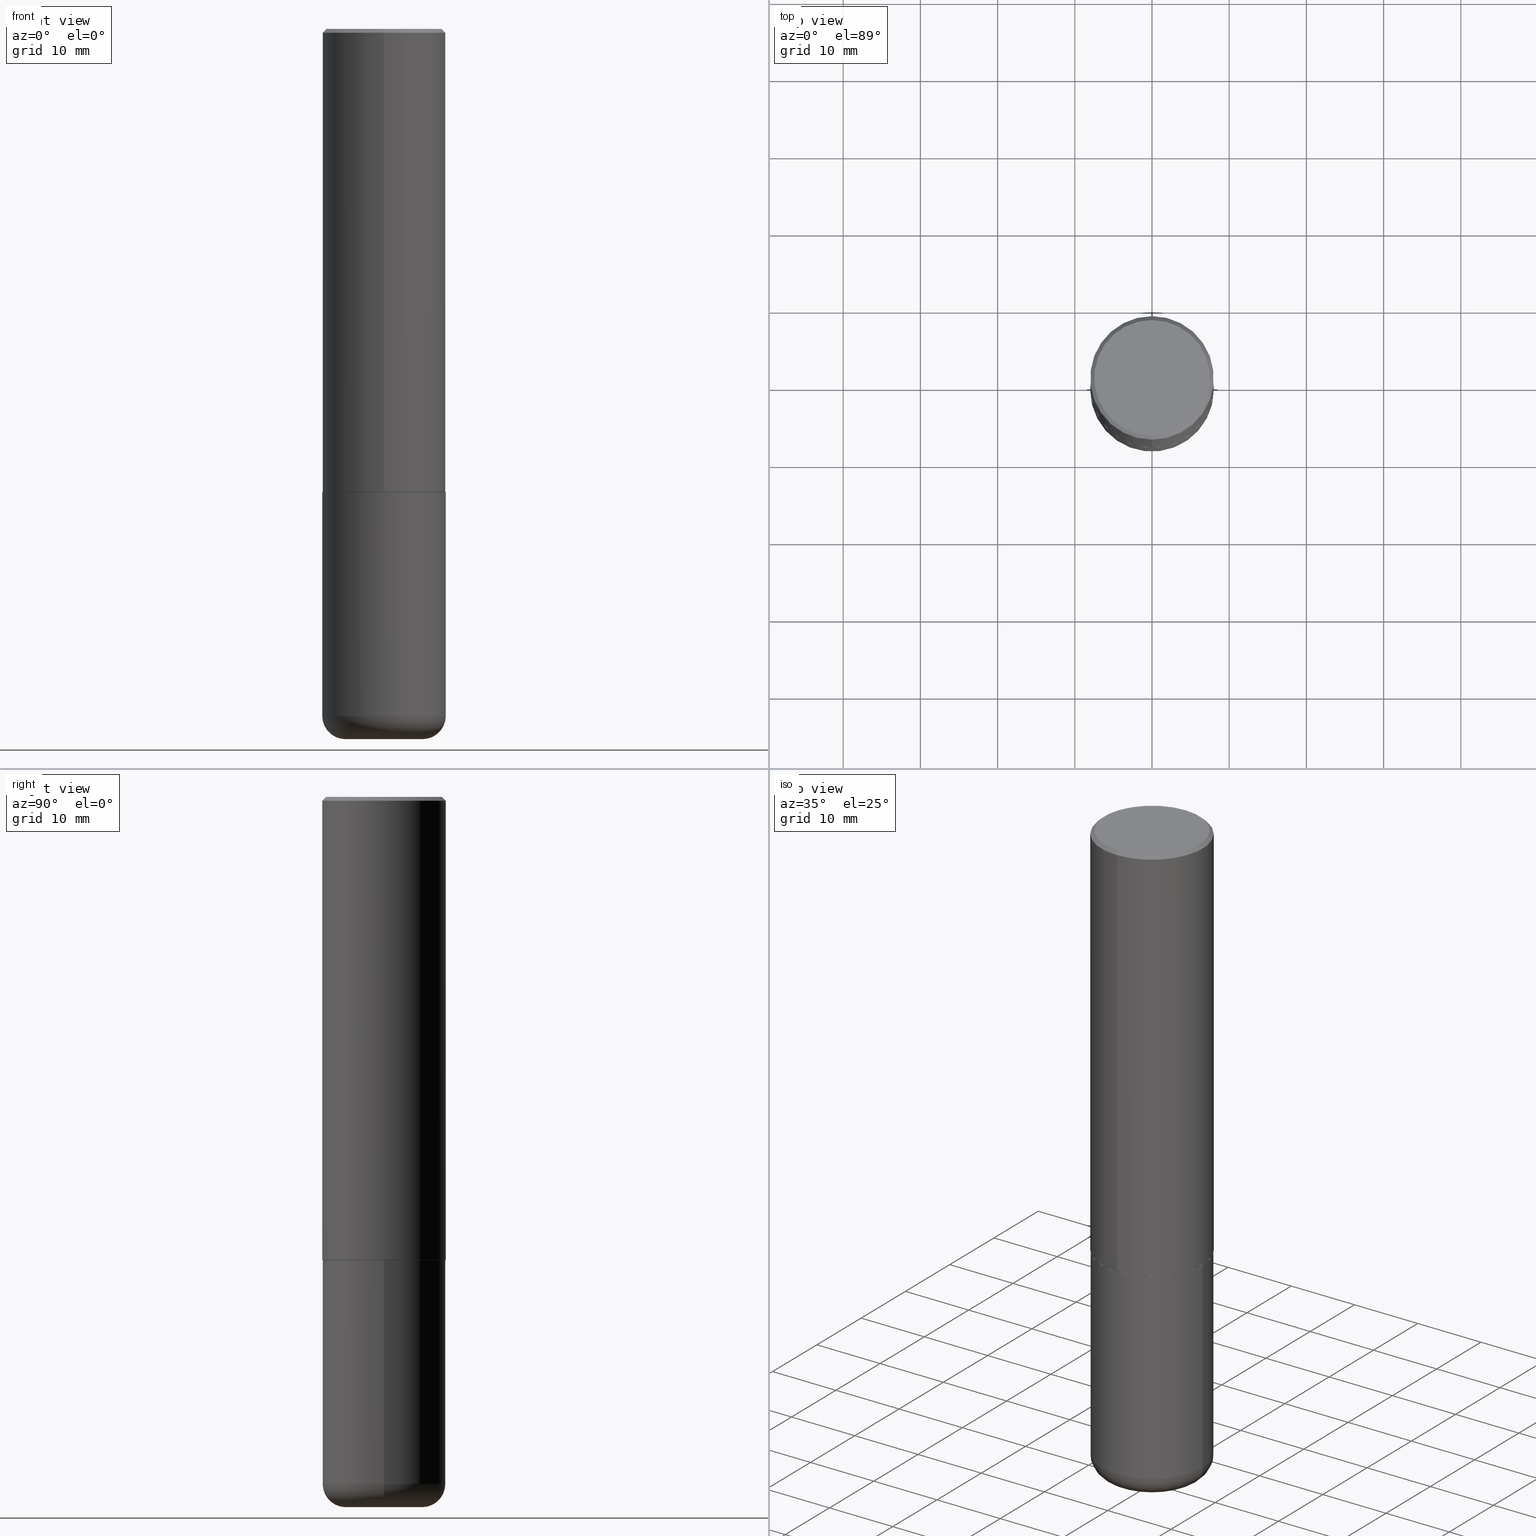
[diagram: canonical four-view strip — front | top / right | iso, engineering-drawing reading convention]
A machine part, canonical four-view strip (front | top / right | iso — engineering-drawing reading convention). The complete STEP part file that produces these views, byte-faithful:
ISO-10303-21;
HEADER;
FILE_DESCRIPTION (( 'STEP AP203' ),
    '1' );
FILE_NAME ('42721.STEP',
    '2024-03-04T03:57:21',
    ( '' ),
    ( '' ),
    'SwSTEP 2.0',
    'SolidWorks 2023',
    '' );
FILE_SCHEMA (( 'CONFIG_CONTROL_DESIGN' ));
ENDSEC;

DATA;
#1 = CARTESIAN_POINT ( 'NONE',  ( 0.3149500000000000077, -2.199284095337289871E-15, 1.535751875536930130E-29 ) ) ;
#2 = ADVANCED_FACE ( 'NONE', ( #363 ), #63, .T. ) ;
#3 = APPLICATION_CONTEXT ( 'configuration controlled 3d designs of mechanical parts and assemblies' ) ;
#4 = AXIS2_PLACEMENT_3D ( 'NONE', #401, #119, #241 ) ;
#5 = DIRECTION ( 'NONE',  ( -2.443194745834749003E-29, 3.494737922696377105E-15, 1.000000000000000000 ) ) ;
#6 = CARTESIAN_POINT ( 'NONE',  ( -2.199284095337233467E-15, -0.3149500000000085564, -2.361199999999998411 ) ) ;
#7 = CIRCLE ( 'NONE', #408, 0.3139500000000000068 ) ;
#8 = CC_DESIGN_APPROVAL ( #140, ( #208 ) ) ;
#9 = APPROVAL ( #68, 'UNSPECIFIED' ) ;
#10 = VERTEX_POINT ( 'NONE', #84 ) ;
#11 = ORIENTED_EDGE ( 'NONE', *, *, #174, .F. ) ;
#12 = CARTESIAN_POINT ( 'NONE',  ( 0.1968500000000000250, -1.360839766627503947E-14, -3.503899999999999793 ) ) ;
#13 = ADVANCED_FACE ( 'NONE', ( #273 ), #25, .T. ) ;
#14 = DIRECTION ( 'NONE',  ( 6.982962677686265922E-15, 1.000000000000000000, -3.496670018878889100E-15 ) ) ;
#15 = DIRECTION ( 'NONE',  ( -6.982962677686265922E-15, -1.000000000000000000, 3.494737922696377105E-15 ) ) ;
#16 = ORIENTED_EDGE ( 'NONE', *, *, #286, .F. ) ;
#17 = DIRECTION ( 'NONE',  ( -1.000000000000000000, 6.982962677686265922E-15, -4.876176775795935793E-29 ) ) ;
#18 = MANIFOLD_SOLID_BREP ( 'Body-Move/Copy2[1]', #280 ) ;
#19 = ORIENTED_EDGE ( 'NONE', *, *, #92, .F. ) ;
#20 = AXIS2_PLACEMENT_3D ( 'NONE', #357, #5, #41 ) ;
#21 = FACE_OUTER_BOUND ( 'NONE', #159, .T. ) ;
#22 = AXIS2_PLACEMENT_3D ( 'NONE', #341, #415, #376 ) ;
#23 = ORIENTED_EDGE ( 'NONE', *, *, #145, .T. ) ;
#24 = MECHANICAL_CONTEXT ( 'NONE', #128, 'mechanical' ) ;
#25 = CYLINDRICAL_SURFACE ( 'NONE', #126, 0.3149500000000000077 ) ;
#26 = APPROVAL_DATE_TIME ( #312, #9 ) ;
#27 = EDGE_CURVE ( 'NONE', #10, #103, #339, .T. ) ;
#28 = VERTEX_POINT ( 'NONE', #371 ) ;
#29 = CIRCLE ( 'NONE', #95, 0.1180999999999999966 ) ;
#30 = DIRECTION ( 'NONE',  ( -1.000000000000000000, 6.982962677686265922E-15, -4.876176775795935793E-29 ) ) ;
#31 = EDGE_LOOP ( 'NONE', ( #135, #394, #318, #236 ) ) ;
#32 = ORIENTED_EDGE ( 'NONE', *, *, #27, .T. ) ;
#33 = EDGE_CURVE ( 'NONE', #10, #115, #397, .T. ) ;
#34 = PERSON_AND_ORGANIZATION_ROLE ( 'design_owner' ) ;
#35 = DIRECTION ( 'NONE',  ( -2.443194745834749283E-29, 3.494737922696377105E-15, 1.000000000000000000 ) ) ;
#36 = DATE_AND_TIME ( #293, #305 ) ;
#37 = DIRECTION ( 'NONE',  ( 1.000000000000000000, -6.982962677686266711E-15, 0.000000000000000000 ) ) ;
#38 = CONICAL_SURFACE ( 'NONE', #389, 0.3149500000000000077, 0.7853981633974465026 ) ;
#39 = DIRECTION ( 'NONE',  ( 6.982962677686265922E-15, 1.000000000000000000, -3.494737922696377105E-15 ) ) ;
#40 = EDGE_CURVE ( 'NONE', #266, #54, #230, .T. ) ;
#41 = DIRECTION ( 'NONE',  ( -6.982962677686265922E-15, -1.000000000000000000, 3.494737922696377105E-15 ) ) ;
#42 = ORIENTED_EDGE ( 'NONE', *, *, #79, .F. ) ;
#43 = CIRCLE ( 'NONE', #310, 0.3149500000000000077 ) ;
#44 = ORIENTED_EDGE ( 'NONE', *, *, #268, .T. ) ;
#45 = CARTESIAN_POINT ( 'NONE',  ( 8.568678149992099474E-29, -1.223380146317249786E-14, -3.503899999999999793 ) ) ;
#46 = DIRECTION ( 'NONE',  ( 2.443194745834749283E-29, -3.494737922696377105E-15, -1.000000000000000000 ) ) ;
#47 = AXIS2_PLACEMENT_3D ( 'NONE', #137, #361, #176 ) ;
#48 = DIRECTION ( 'NONE',  ( -2.443194745834749283E-29, 3.494737922696377105E-15, 1.000000000000000000 ) ) ;
#49 = ORIENTED_EDGE ( 'NONE', *, *, #184, .T. ) ;
#50 = DIRECTION ( 'NONE',  ( 4.937700262164538576E-15, 0.7071067811865437980, -0.7071067811865512365 ) ) ;
#51 = ORIENTED_EDGE ( 'NONE', *, *, #358, .F. ) ;
#52 = CARTESIAN_POINT ( 'NONE',  ( 0.000000000000000000, 0.000000000000000000, 0.000000000000000000 ) ) ;
#53 = CIRCLE ( 'NONE', #151, 0.3149500000000002853 ) ;
#54 = VERTEX_POINT ( 'NONE', #256 ) ;
#55 = AXIS2_PLACEMENT_3D ( 'NONE', #276, #309, #157 ) ;
#56 = ORIENTED_EDGE ( 'NONE', *, *, #92, .T. ) ;
#57 = APPROVAL_ROLE ( '' ) ;
#58 = EDGE_CURVE ( 'NONE', #207, #54, #378, .T. ) ;
#59 = DIRECTION ( 'NONE',  ( -2.445468806185136877E-29, 3.491481338843145188E-15, 1.000000000000000000 ) ) ;
#60 = APPROVAL_DATE_TIME ( #97, #140 ) ;
#61 = DIRECTION ( 'NONE',  ( -6.982962677686266711E-15, -1.000000000000000000, 3.480615376543096919E-15 ) ) ;
#62 = APPLICATION_PROTOCOL_DEFINITION ( 'international standard', 'config_control_design', 1994, #3 ) ;
#63 = CONICAL_SURFACE ( 'NONE', #55, 0.3139500000000000068, 0.7853981633976873100 ) ;
#64 = DIRECTION ( 'NONE',  ( -6.982962677686265922E-15, -1.000000000000000000, 3.496670018878889100E-15 ) ) ;
#65 = APPROVAL_PERSON_ORGANIZATION ( #298, #346, #352 ) ;
#66 = EDGE_CURVE ( 'NONE', #344, #375, #7, .T. ) ;
#67 = ORIENTED_EDGE ( 'NONE', *, *, #58, .F. ) ;
#68 = APPROVAL_STATUS ( 'not_yet_approved' ) ;
#69 = FACE_OUTER_BOUND ( 'NONE', #320, .T. ) ;
#70 = CC_DESIGN_PERSON_AND_ORGANIZATION_ASSIGNMENT ( #379, #101, ( #143 ) ) ;
#71 = CIRCLE ( 'NONE', #85, 0.3139500000000000068 ) ;
#72 = TOROIDAL_SURFACE ( 'NONE', #325, 0.1968500000000000250, 0.1181000000000000105 ) ;
#73 = APPROVAL_STATUS ( 'not_yet_approved' ) ;
#74 = PLANE ( 'NONE',  #171 ) ;
#75 = EDGE_CURVE ( 'NONE', #103, #266, #98, .T. ) ;
#76 = EDGE_LOOP ( 'NONE', ( #402, #381 ) ) ;
#77 = PLANE ( 'NONE',  #20 ) ;
#78 = VECTOR ( 'NONE', #240, 39.37007874015748143 ) ;
#79 = EDGE_CURVE ( 'NONE', #225, #302, #194, .T. ) ;
#80 = ADVANCED_FACE ( 'NONE', ( #254 ), #109, .T. ) ;
#81 = ORIENTED_EDGE ( 'NONE', *, *, #184, .F. ) ;
#82 = DIRECTION ( 'NONE',  ( -6.982962677686266711E-15, -1.000000000000000000, 3.491481338843145583E-15 ) ) ;
#83 = FACE_OUTER_BOUND ( 'NONE', #216, .T. ) ;
#84 = CARTESIAN_POINT ( 'NONE',  ( -0.1968500000000000527, -1.062169457542108922E-14, -3.621999999999999886 ) ) ;
#85 = AXIS2_PLACEMENT_3D ( 'NONE', #232, #328, #259 ) ;
#86 = DIRECTION ( 'NONE',  ( 1.000000000000000000, -6.982962677686266711E-15, 4.876176775795936353E-29 ) ) ;
#87 = ORIENTED_EDGE ( 'NONE', *, *, #33, .F. ) ;
#88 = LINE ( 'NONE', #308, #78 ) ;
#89 = CARTESIAN_POINT ( 'NONE',  ( 0.000000000000000000, 0.000000000000000000, 0.000000000000000000 ) ) ;
#90 = EDGE_LOOP ( 'NONE', ( #251, #244, #414, #23 ) ) ;
#91 = DIRECTION ( 'NONE',  ( 2.443194745834749283E-29, -3.494737922696377105E-15, -1.000000000000000000 ) ) ;
#92 = EDGE_CURVE ( 'NONE', #28, #267, #377, .T. ) ;
#93 = CIRCLE ( 'NONE', #165, 0.2949499999999997679 ) ;
#94 = EDGE_LOOP ( 'NONE', ( #11, #198 ) ) ;
#95 = AXIS2_PLACEMENT_3D ( 'NONE', #12, #82, #152 ) ;
#96 = EDGE_CURVE ( 'NONE', #204, #225, #191, .T. ) ;
#97 = DATE_AND_TIME ( #255, #195 ) ;
#98 = LINE ( 'NONE', #133, #178 ) ;
#99 = ADVANCED_BREP_SHAPE_REPRESENTATION ( '42721', ( #18, #179, #22 ), #370 ) ;
#100 = CC_DESIGN_DATE_AND_TIME_ASSIGNMENT ( #190, #349, ( #208 ) ) ;
#101 = PERSON_AND_ORGANIZATION_ROLE ( 'design_supplier' ) ;
#102 = CARTESIAN_POINT ( 'NONE',  ( 5.771314628610843962E-29, -8.255269920993381525E-15, -2.362199999999999633 ) ) ;
#103 = VERTEX_POINT ( 'NONE', #316 ) ;
#104 = CARTESIAN_POINT ( 'NONE',  ( 8.857488016002564476E-29, -1.264614540928987199E-14, -3.621999999999999886 ) ) ;
#105 = AXIS2_PLACEMENT_3D ( 'NONE', #287, #200, #343 ) ;
#106 = CARTESIAN_POINT ( 'NONE',  ( 8.568678149992099474E-29, -1.223380146317249786E-14, -3.503899999999999793 ) ) ;
#107 = ADVANCED_FACE ( 'NONE', ( #382 ), #292, .T. ) ;
#108 = APPROVAL_ROLE ( '' ) ;
#109 = PLANE ( 'NONE',  #221 ) ;
#110 = APPROVAL_DATE_TIME ( #36, #346 ) ;
#111 = AXIS2_PLACEMENT_3D ( 'NONE', #210, #153, #15 ) ;
#112 = CC_DESIGN_APPROVAL ( #346, ( #360 ) ) ;
#113 = ORIENTED_EDGE ( 'NONE', *, *, #314, .F. ) ;
#114 = LINE ( 'NONE', #294, #281 ) ;
#115 = VERTEX_POINT ( 'NONE', #279 ) ;
#116 = ORIENTED_EDGE ( 'NONE', *, *, #173, .T. ) ;
#117 = LOCAL_TIME ( 22, 57, 21.00000000000000000, #407 ) ;
#118 = CARTESIAN_POINT ( 'NONE',  ( -6.593616195672795662E-45, 9.431487443236869670E-31, 2.698768162838366015E-16 ) ) ;
#119 = DIRECTION ( 'NONE',  ( 7.105427357601001859E-15, 1.000000000000000000, -3.491481338843145583E-15 ) ) ;
#120 = AXIS2_PLACEMENT_3D ( 'NONE', #102, #220, #61 ) ;
#121 = ORIENTED_EDGE ( 'NONE', *, *, #214, .F. ) ;
#122 = CARTESIAN_POINT ( 'NONE',  ( 2.237854346276435985E-15, 0.3149500000000001743, -1.100667708753224483E-15 ) ) ;
#123 = FACE_OUTER_BOUND ( 'NONE', #161, .T. ) ;
#124 = ADVANCED_FACE ( 'NONE', ( #283 ), #250, .T. ) ;
#125 = DIRECTION ( 'NONE',  ( -2.445468806185136597E-29, 3.491481338843145583E-15, 1.000000000000000000 ) ) ;
#126 = AXIS2_PLACEMENT_3D ( 'NONE', #89, #365, #248 ) ;
#127 = UNCERTAINTY_MEASURE_WITH_UNIT (LENGTH_MEASURE( 1.000000000000000082E-05 ), #136, 'distance_accuracy_value', 'NONE');
#128 = APPLICATION_CONTEXT ( 'configuration controlled 3d designs of mechanical parts and assemblies' ) ;
#129 = ORGANIZATION ( 'UNSPECIFIED', 'UNSPECIFIED', '' ) ;
#130 = PERSON_AND_ORGANIZATION ( #260, #129 ) ;
#131 = EDGE_LOOP ( 'NONE', ( #16, #396, #307, #113 ) ) ;
#132 = APPLICATION_PROTOCOL_DEFINITION ( 'international standard', 'config_control_design', 1994, #128 ) ;
#133 = CARTESIAN_POINT ( 'NONE',  ( -0.3149500000000000077, 2.237854346276435590E-15, -1.549218606675782676E-29 ) ) ;
#134 = CARTESIAN_POINT ( 'NONE',  ( 0.000000000000000000, 0.000000000000000000, 0.000000000000000000 ) ) ;
#135 = ORIENTED_EDGE ( 'NONE', *, *, #75, .F. ) ;
#136 =( CONVERSION_BASED_UNIT ( 'INCH', #372 ) LENGTH_UNIT ( ) NAMED_UNIT ( #285 ) );
#137 = CARTESIAN_POINT ( 'NONE',  ( 5.776686413970529753E-29, -8.247577218615278049E-15, -2.362199999999999633 ) ) ;
#138 = LOCAL_TIME ( 22, 57, 21.00000000000000000, #223 ) ;
#139 = ORIENTED_EDGE ( 'NONE', *, *, #145, .F. ) ;
#140 = APPROVAL ( #387, 'UNSPECIFIED' ) ;
#141 = CARTESIAN_POINT ( 'NONE',  ( 0.3149500000000000077, -1.443308555850978615E-14, -3.503899999999999793 ) ) ;
#142 = VECTOR ( 'NONE', #404, 39.37007874015748143 ) ;
#143 = PRODUCT_DEFINITION_FORMATION_WITH_SPECIFIED_SOURCE ( 'ANY', '', #417, .NOT_KNOWN. ) ;
#144 = PERSON_AND_ORGANIZATION_ROLE ( 'classification_officer' ) ;
#145 = EDGE_CURVE ( 'NONE', #302, #225, #43, .T. ) ;
#146 = CARTESIAN_POINT ( 'NONE',  ( -2.192301132659545875E-15, -0.3139500000000082780, -2.362199999999998301 ) ) ;
#147 = ORIENTED_EDGE ( 'NONE', *, *, #295, .F. ) ;
#148 = EDGE_LOOP ( 'NONE', ( #340, #32, #228, #51 ) ) ;
#149 = ADVANCED_FACE ( 'NONE', ( #69 ), #416, .T. ) ;
#150 = DIRECTION ( 'NONE',  ( -2.443194745834749563E-29, 3.494737922696377105E-15, 1.000000000000000000 ) ) ;
#151 = AXIS2_PLACEMENT_3D ( 'NONE', #391, #355, #203 ) ;
#152 = DIRECTION ( 'NONE',  ( 1.000000000000000000, -6.982962677686273021E-15, 0.000000000000000000 ) ) ;
#153 = DIRECTION ( 'NONE',  ( -2.443194745834749283E-29, 3.494737922696377105E-15, 1.000000000000000000 ) ) ;
#154 = ORIENTED_EDGE ( 'NONE', *, *, #373, .F. ) ;
#155 = CONICAL_SURFACE ( 'NONE', #212, 0.3149500000000000077, 0.7853981633974465026 ) ;
#156 = CARTESIAN_POINT ( 'NONE',  ( 2.199284095337289871E-15, 0.3149499999999999522, -0.02000000000000116962 ) ) ;
#157 = DIRECTION ( 'NONE',  ( -6.982962677686266711E-15, -1.000000000000000000, 3.480615376543096919E-15 ) ) ;
#158 = EDGE_CURVE ( 'NONE', #207, #103, #347, .T. ) ;
#159 = EDGE_LOOP ( 'NONE', ( #116, #362 ) ) ;
#160 = COORDINATED_UNIVERSAL_TIME_OFFSET ( 5, 0, .BEHIND. ) ;
#161 = EDGE_LOOP ( 'NONE', ( #44, #167, #42, #81 ) ) ;
#162 = PERSON_AND_ORGANIZATION_ROLE ( 'creator' ) ;
#163 = CARTESIAN_POINT ( 'NONE',  ( -2.160713844398143363E-15, -0.3149500000000000632, -0.01999999999999896652 ) ) ;
#164 = CLOSED_SHELL ( 'NONE', ( #124, #353, #313, #405, #149, #2, #199, #237 ) ) ;
#165 = AXIS2_PLACEMENT_3D ( 'NONE', #118, #48, #364 ) ;
#166 = DIRECTION ( 'NONE',  ( -2.443194745834749283E-29, 3.494737922696377105E-15, 1.000000000000000000 ) ) ;
#167 = ORIENTED_EDGE ( 'NONE', *, *, #373, .T. ) ;
#168 = ORIENTED_EDGE ( 'NONE', *, *, #158, .T. ) ;
#169 = CALENDAR_DATE ( 2024, 3, 3 ) ;
#170 = DIRECTION ( 'NONE',  ( -2.445468806185136597E-29, 3.491481338843145583E-15, 1.000000000000000000 ) ) ;
#171 = AXIS2_PLACEMENT_3D ( 'NONE', #201, #326, #39 ) ;
#172 = CC_DESIGN_SECURITY_CLASSIFICATION ( #360, ( #143 ) ) ;
#173 = EDGE_CURVE ( 'NONE', #54, #266, #257, .T. ) ;
#174 = EDGE_CURVE ( 'NONE', #375, #344, #71, .T. ) ;
#175 = CC_DESIGN_PERSON_AND_ORGANIZATION_ASSIGNMENT ( #315, #162, ( #208 ) ) ;
#176 = DIRECTION ( 'NONE',  ( 1.000000000000000000, -6.982962677686266711E-15, 0.000000000000000000 ) ) ;
#177 = ORIENTED_EDGE ( 'NONE', *, *, #290, .T. ) ;
#178 = VECTOR ( 'NONE', #59, 39.37007874015748143 ) ;
#179 = MANIFOLD_SOLID_BREP ( 'Body-Move/Copy2[2]', #164 ) ;
#180 = DATE_TIME_ROLE ( 'classification_date' ) ;
#181 = ORIENTED_EDGE ( 'NONE', *, *, #358, .T. ) ;
#182 = VECTOR ( 'NONE', #224, 39.37007874015748143 ) ;
#183 = AXIS2_PLACEMENT_3D ( 'NONE', #52, #275, #86 ) ;
#184 = EDGE_CURVE ( 'NONE', #267, #225, #114, .T. ) ;
#185 = CARTESIAN_POINT ( 'NONE',  ( 4.886389491669515207E-31, -6.989475845392777581E-17, -0.02000000000000006981 ) ) ;
#186 = CARTESIAN_POINT ( 'NONE',  ( 5.776686413970529753E-29, -8.247577218615278049E-15, -2.362199999999999633 ) ) ;
#187 = DESIGN_CONTEXT ( 'detailed design', #3, 'design' ) ;
#188 = DIRECTION ( 'NONE',  ( -2.445468806185136597E-29, 3.491481338843145583E-15, 1.000000000000000000 ) ) ;
#189 = CIRCLE ( 'NONE', #291, 0.3149500000000000077 ) ;
#190 = DATE_AND_TIME ( #169, #138 ) ;
#191 = LINE ( 'NONE', #163, #242 ) ;
#192 = PERSON_AND_ORGANIZATION ( #260, #129 ) ;
#193 = DIRECTION ( 'NONE',  ( -6.982962677686265922E-15, -1.000000000000000000, 3.496670018878889100E-15 ) ) ;
#194 = CIRCLE ( 'NONE', #368, 0.3149500000000000077 ) ;
#195 = LOCAL_TIME ( 22, 57, 21.00000000000000000, #160 ) ;
#196 =( NAMED_UNIT ( * ) PLANE_ANGLE_UNIT ( ) SI_UNIT ( $, .RADIAN. ) );
#197 = CARTESIAN_POINT ( 'NONE',  ( 5.771314628610843962E-29, -8.255269920993381525E-15, -2.362199999999999633 ) ) ;
#198 = ORIENTED_EDGE ( 'NONE', *, *, #66, .F. ) ;
#199 = ADVANCED_FACE ( 'NONE', ( #264 ), #77, .F. ) ;
#200 = DIRECTION ( 'NONE',  ( -2.443194745834749283E-29, 3.494737922696377105E-15, 1.000000000000000000 ) ) ;
#201 = CARTESIAN_POINT ( 'NONE',  ( 2.059624841783562486E-15, 0.2949499999999997679, -8.958345421573771736E-16 ) ) ;
#202 = COORDINATED_UNIVERSAL_TIME_OFFSET ( 5, 0, .BEHIND. ) ;
#203 = DIRECTION ( 'NONE',  ( -6.982962677686265922E-15, -1.000000000000000000, 3.469564049740290009E-15 ) ) ;
#204 = VERTEX_POINT ( 'NONE', #301 ) ;
#205 = EDGE_LOOP ( 'NONE', ( #386, #418, #181, #121 ) ) ;
#206 = AXIS2_PLACEMENT_3D ( 'NONE', #106, #170, #289 ) ;
#207 = VERTEX_POINT ( 'NONE', #141 ) ;
#208 = PRODUCT_DEFINITION ( 'UNKNOWN', '', #143, #187 ) ;
#209 = LINE ( 'NONE', #122, #410 ) ;
#210 = CARTESIAN_POINT ( 'NONE',  ( -6.593616195672795662E-45, 9.431487443236869670E-31, 2.698768162838366015E-16 ) ) ;
#211 = CC_DESIGN_PERSON_AND_ORGANIZATION_ASSIGNMENT ( #296, #144, ( #360 ) ) ;
#212 = AXIS2_PLACEMENT_3D ( 'NONE', #185, #46, #306 ) ;
#213 = FACE_OUTER_BOUND ( 'NONE', #131, .T. ) ;
#214 = EDGE_CURVE ( 'NONE', #103, #207, #189, .T. ) ;
#215 = VECTOR ( 'NONE', #50, 39.37007874015748143 ) ;
#216 = EDGE_LOOP ( 'NONE', ( #168, #411, #265, #67 ) ) ;
#217 = DIRECTION ( 'NONE',  ( -2.443194745834749283E-29, 3.494737922696377105E-15, 1.000000000000000000 ) ) ;
#218 = ORIENTED_EDGE ( 'NONE', *, *, #174, .T. ) ;
#219 = SECURITY_CLASSIFICATION_LEVEL ( 'unclassified' ) ;
#220 = DIRECTION ( 'NONE',  ( -2.443194745834749283E-29, 3.494737922696377105E-15, 1.000000000000000000 ) ) ;
#221 = AXIS2_PLACEMENT_3D ( 'NONE', #227, #350, #30 ) ;
#222 = LOCAL_TIME ( 22, 57, 21.00000000000000000, #202 ) ;
#223 = COORDINATED_UNIVERSAL_TIME_OFFSET ( 5, 0, .BEHIND. ) ;
#224 = DIRECTION ( 'NONE',  ( -2.445468806185136877E-29, 3.491481338843145188E-15, 1.000000000000000000 ) ) ;
#225 = VERTEX_POINT ( 'NONE', #330 ) ;
#226 = CALENDAR_DATE ( 2024, 3, 3 ) ;
#227 = CARTESIAN_POINT ( 'NONE',  ( 8.857488016002564476E-29, -1.264614540928987199E-14, -3.621999999999999886 ) ) ;
#228 = ORIENTED_EDGE ( 'NONE', *, *, #158, .F. ) ;
#229 = PRODUCT_RELATED_PRODUCT_CATEGORY ( 'detail', '', ( #417 ) ) ;
#230 = CIRCLE ( 'NONE', #327, 0.3149500000000000077 ) ;
#231 = SHAPE_DEFINITION_REPRESENTATION ( #284, #99 ) ;
#232 = CARTESIAN_POINT ( 'NONE',  ( 5.771314628610843962E-29, -8.255269920993381525E-15, -2.362199999999999633 ) ) ;
#233 = DATE_AND_TIME ( #300, #222 ) ;
#234 = VERTEX_POINT ( 'NONE', #395 ) ;
#235 = CIRCLE ( 'NONE', #269, 0.1968500000000000527 ) ;
#236 = ORIENTED_EDGE ( 'NONE', *, *, #40, .F. ) ;
#237 = ADVANCED_FACE ( 'NONE', ( #354 ), #74, .F. ) ;
#238 = CARTESIAN_POINT ( 'NONE',  ( 8.857488016002564476E-29, -1.264614540928987199E-14, -3.621999999999999886 ) ) ;
#239 = DIRECTION ( 'NONE',  ( -2.443194745834749283E-29, 3.494737922696377105E-15, 1.000000000000000000 ) ) ;
#240 = DIRECTION ( 'NONE',  ( 5.024295867789263036E-15, 0.7071067811867189912, 0.7071067811863760433 ) ) ;
#241 = DIRECTION ( 'NONE',  ( -1.000000000000000000, 7.105427357601005014E-15, 0.000000000000000000 ) ) ;
#242 = VECTOR ( 'NONE', #323, 39.37007874015748143 ) ;
#243 = CC_DESIGN_APPROVAL ( #9, ( #143 ) ) ;
#244 = ORIENTED_EDGE ( 'NONE', *, *, #356, .F. ) ;
#245 = CC_DESIGN_DATE_AND_TIME_ASSIGNMENT ( #233, #180, ( #360 ) ) ;
#246 = ORIENTED_EDGE ( 'NONE', *, *, #66, .T. ) ;
#247 = CARTESIAN_POINT ( 'NONE',  ( 0.000000000000000000, 0.000000000000000000, 0.000000000000000000 ) ) ;
#248 = DIRECTION ( 'NONE',  ( 1.000000000000000000, -6.982962677686266711E-15, 4.876176775795936353E-29 ) ) ;
#249 = DIRECTION ( 'NONE',  ( -6.982962677686266711E-15, -1.000000000000000000, 3.480615376543096919E-15 ) ) ;
#250 = CONICAL_SURFACE ( 'NONE', #120, 0.3139500000000000068, 0.7853981633976873100 ) ;
#251 = ORIENTED_EDGE ( 'NONE', *, *, #96, .F. ) ;
#252 = PERSON_AND_ORGANIZATION_ROLE ( 'creator' ) ;
#253 = DIRECTION ( 'NONE',  ( 1.000000000000000000, -6.982962677686263555E-15, 4.883557194083111780E-29 ) ) ;
#254 = FACE_OUTER_BOUND ( 'NONE', #274, .T. ) ;
#255 = CALENDAR_DATE ( 2024, 3, 3 ) ;
#256 = CARTESIAN_POINT ( 'NONE',  ( 0.3149500000000000077, -1.044686131395256792E-14, -2.362199999999999633 ) ) ;
#257 = CIRCLE ( 'NONE', #47, 0.3149500000000000077 ) ;
#258 =( NAMED_UNIT ( * ) SI_UNIT ( $, .STERADIAN. ) SOLID_ANGLE_UNIT ( ) );
#259 = DIRECTION ( 'NONE',  ( -6.982962677686266711E-15, -1.000000000000000000, 3.480615376543096919E-15 ) ) ;
#260 = PERSON ( 'UNSPECIFIED', 'UNSPECIFIED', 'UNSPECIFIED', ('UNSPECIFIED'), ('UNSPECIFIED'), ('UNSPECIFIED') ) ;
#261 = DIRECTION ( 'NONE',  ( -2.445468806185136597E-29, 3.491481338843145583E-15, 1.000000000000000000 ) ) ;
#262 = AXIS2_PLACEMENT_3D ( 'NONE', #186, #366, #17 ) ;
#263 = APPROVAL_PERSON_ORGANIZATION ( #192, #9, #108 ) ;
#264 = FACE_OUTER_BOUND ( 'NONE', #94, .T. ) ;
#265 = ORIENTED_EDGE ( 'NONE', *, *, #173, .F. ) ;
#266 = VERTEX_POINT ( 'NONE', #297 ) ;
#267 = VERTEX_POINT ( 'NONE', #6 ) ;
#268 = EDGE_CURVE ( 'NONE', #267, #28, #53, .T. ) ;
#269 = AXIS2_PLACEMENT_3D ( 'NONE', #238, #188, #331 ) ;
#270 = CARTESIAN_POINT ( 'NONE',  ( -2.192301132659545875E-15, -0.3139500000000082780, -2.362199999999998301 ) ) ;
#271 = DIRECTION ( 'NONE',  ( 1.000000000000000000, -6.982962677686263555E-15, 4.883557194083111780E-29 ) ) ;
#272 = FACE_OUTER_BOUND ( 'NONE', #205, .T. ) ;
#273 = FACE_OUTER_BOUND ( 'NONE', #31, .T. ) ;
#274 = EDGE_LOOP ( 'NONE', ( #147, #87 ) ) ;
#275 = DIRECTION ( 'NONE',  ( -2.445468806185136597E-29, 3.491481338843145583E-15, 1.000000000000000000 ) ) ;
#276 = CARTESIAN_POINT ( 'NONE',  ( 5.771314628610843962E-29, -8.255269920993381525E-15, -2.362199999999999633 ) ) ;
#277 = LINE ( 'NONE', #156, #215 ) ;
#278 = EDGE_CURVE ( 'NONE', #375, #267, #393, .T. ) ;
#279 = CARTESIAN_POINT ( 'NONE',  ( 0.1968500000000000527, -1.402074161239241360E-14, -3.621999999999999886 ) ) ;
#280 = CLOSED_SHELL ( 'NONE', ( #367, #107, #336, #13, #412, #80 ) ) ;
#281 = VECTOR ( 'NONE', #388, 39.37007874015748143 ) ;
#282 = CC_DESIGN_PERSON_AND_ORGANIZATION_ASSIGNMENT ( #130, #252, ( #143 ) ) ;
#283 = FACE_OUTER_BOUND ( 'NONE', #288, .T. ) ;
#284 = PRODUCT_DEFINITION_SHAPE ( 'NONE', 'NONE',  #208 ) ;
#285 = DIMENSIONAL_EXPONENTS ( 1.000000000000000000, 0.000000000000000000, 0.000000000000000000, 0.000000000000000000, 0.000000000000000000, 0.000000000000000000, 0.000000000000000000 ) ;
#286 = EDGE_CURVE ( 'NONE', #204, #234, #359, .T. ) ;
#287 = CARTESIAN_POINT ( 'NONE',  ( 5.768871433865010313E-29, -8.251775183070685478E-15, -2.361199999999999743 ) ) ;
#288 = EDGE_LOOP ( 'NONE', ( #218, #177, #337, #329 ) ) ;
#289 = DIRECTION ( 'NONE',  ( 1.000000000000000000, -6.982962677686263555E-15, 0.000000000000000000 ) ) ;
#290 = EDGE_CURVE ( 'NONE', #344, #28, #88, .T. ) ;
#291 = AXIS2_PLACEMENT_3D ( 'NONE', #45, #261, #299 ) ;
#292 = TOROIDAL_SURFACE ( 'NONE', #324, 0.1968500000000000250, 0.1181000000000000105 ) ;
#293 = CALENDAR_DATE ( 2024, 3, 3 ) ;
#294 = CARTESIAN_POINT ( 'NONE',  ( -2.199284095337290265E-15, -0.3149500000000001743, 1.100667708753224483E-15 ) ) ;
#295 = EDGE_CURVE ( 'NONE', #115, #10, #235, .T. ) ;
#296 = PERSON_AND_ORGANIZATION ( #260, #129 ) ;
#297 = CARTESIAN_POINT ( 'NONE',  ( -0.3149500000000000077, -8.002834994617451969E-15, -2.362199999999999633 ) ) ;
#298 = PERSON_AND_ORGANIZATION ( #260, #129 ) ;
#299 = DIRECTION ( 'NONE',  ( 1.000000000000000000, -6.982962677686263555E-15, 0.000000000000000000 ) ) ;
#300 = CALENDAR_DATE ( 2024, 3, 3 ) ;
#301 = CARTESIAN_POINT ( 'NONE',  ( -2.092108864420427242E-15, -0.2949499999999997679, 1.300649766583132199E-15 ) ) ;
#302 = VERTEX_POINT ( 'NONE', #338 ) ;
#303 = CARTESIAN_POINT ( 'NONE',  ( 2.234301632597693067E-15, 0.3139499999999917357, -2.362200000000000522 ) ) ;
#304 = DIRECTION ( 'NONE',  ( -2.445468806185136597E-29, 3.491481338843145583E-15, 1.000000000000000000 ) ) ;
#305 = LOCAL_TIME ( 22, 57, 21.00000000000000000, #390 ) ;
#306 = DIRECTION ( 'NONE',  ( 6.982962677686265922E-15, 1.000000000000000000, -3.496670018878889100E-15 ) ) ;
#307 = ORIENTED_EDGE ( 'NONE', *, *, #79, .T. ) ;
#308 = CARTESIAN_POINT ( 'NONE',  ( 2.230748918918891775E-15, 0.3139499999999917357, -2.362200000000000522 ) ) ;
#309 = DIRECTION ( 'NONE',  ( -2.443194745834749283E-29, 3.494737922696377105E-15, 1.000000000000000000 ) ) ;
#310 = AXIS2_PLACEMENT_3D ( 'NONE', #317, #166, #64 ) ;
#311 = APPROVAL_PERSON_ORGANIZATION ( #383, #140, #57 ) ;
#312 = DATE_AND_TIME ( #226, #117 ) ;
#313 = ADVANCED_FACE ( 'NONE', ( #213 ), #38, .T. ) ;
#314 = EDGE_CURVE ( 'NONE', #234, #302, #277, .T. ) ;
#315 = PERSON_AND_ORGANIZATION ( #260, #129 ) ;
#316 = CARTESIAN_POINT ( 'NONE',  ( -0.3149500000000000077, -9.995947116896063452E-15, -3.503899999999999793 ) ) ;
#317 = CARTESIAN_POINT ( 'NONE',  ( 4.886389491669515207E-31, -6.989475845392777581E-17, -0.02000000000000006981 ) ) ;
#318 = ORIENTED_EDGE ( 'NONE', *, *, #58, .T. ) ;
#319 = DIRECTION ( 'NONE',  ( -2.445468806185136597E-29, 3.491481338843145583E-15, 1.000000000000000000 ) ) ;
#320 = EDGE_LOOP ( 'NONE', ( #154, #56, #49, #139 ) ) ;
#321 = PERSON_AND_ORGANIZATION ( #260, #129 ) ;
#322 = DIRECTION ( 'NONE',  ( -2.445468806185136597E-29, 3.491481338843145583E-15, 1.000000000000000000 ) ) ;
#323 = DIRECTION ( 'NONE',  ( -4.851104656540954809E-15, -0.7071067811865486830, -0.7071067811865463515 ) ) ;
#324 = AXIS2_PLACEMENT_3D ( 'NONE', #409, #319, #253 ) ;
#325 = AXIS2_PLACEMENT_3D ( 'NONE', #400, #304, #271 ) ;
#326 = DIRECTION ( 'NONE',  ( 2.443194745834749003E-29, -3.494737922696377105E-15, -1.000000000000000000 ) ) ;
#327 = AXIS2_PLACEMENT_3D ( 'NONE', #345, #322, #413 ) ;
#328 = DIRECTION ( 'NONE',  ( -2.443194745834749283E-29, 3.494737922696377105E-15, 1.000000000000000000 ) ) ;
#329 = ORIENTED_EDGE ( 'NONE', *, *, #278, .F. ) ;
#330 = CARTESIAN_POINT ( 'NONE',  ( -2.160713844398143363E-15, -0.3149500000000000632, -0.01999999999999896652 ) ) ;
#331 = DIRECTION ( 'NONE',  ( 1.000000000000000000, -6.982962677686266711E-15, 0.000000000000000000 ) ) ;
#332 = AXIS2_PLACEMENT_3D ( 'NONE', #247, #239, #374 ) ;
#333 = CYLINDRICAL_SURFACE ( 'NONE', #332, 0.3149500000000001743 ) ;
#334 = EDGE_LOOP ( 'NONE', ( #348, #246, #392, #19 ) ) ;
#335 = PLANE ( 'NONE',  #262 ) ;
#336 = ADVANCED_FACE ( 'NONE', ( #21 ), #335, .F. ) ;
#337 = ORIENTED_EDGE ( 'NONE', *, *, #268, .F. ) ;
#338 = CARTESIAN_POINT ( 'NONE',  ( 2.199284095337289871E-15, 0.3149499999999999522, -0.02000000000000116962 ) ) ;
#339 = CIRCLE ( 'NONE', #4, 0.1180999999999999966 ) ;
#340 = ORIENTED_EDGE ( 'NONE', *, *, #295, .T. ) ;
#341 = CARTESIAN_POINT ( 'NONE',  ( 0.000000000000000000, 0.000000000000000000, 0.000000000000000000 ) ) ;
#342 = DIRECTION ( 'NONE',  ( -2.443194745834749283E-29, 3.494737922696377105E-15, 1.000000000000000000 ) ) ;
#343 = DIRECTION ( 'NONE',  ( -6.982962677686265922E-15, -1.000000000000000000, 3.469564049740290009E-15 ) ) ;
#344 = VERTEX_POINT ( 'NONE', #303 ) ;
#345 = CARTESIAN_POINT ( 'NONE',  ( 5.776686413970529753E-29, -8.247577218615278049E-15, -2.362199999999999633 ) ) ;
#346 = APPROVAL ( #73, 'UNSPECIFIED' ) ;
#347 = CIRCLE ( 'NONE', #206, 0.3149500000000000077 ) ;
#348 = ORIENTED_EDGE ( 'NONE', *, *, #290, .F. ) ;
#349 = DATE_TIME_ROLE ( 'creation_date' ) ;
#350 = DIRECTION ( 'NONE',  ( 2.438088387897960049E-29, -3.491481338843145188E-15, -1.000000000000000000 ) ) ;
#351 = CC_DESIGN_PERSON_AND_ORGANIZATION_ASSIGNMENT ( #321, #34, ( #417 ) ) ;
#352 = APPROVAL_ROLE ( '' ) ;
#353 = ADVANCED_FACE ( 'NONE', ( #123 ), #333, .T. ) ;
#354 = FACE_OUTER_BOUND ( 'NONE', #76, .T. ) ;
#355 = DIRECTION ( 'NONE',  ( -2.443194745834749283E-29, 3.494737922696377105E-15, 1.000000000000000000 ) ) ;
#356 = EDGE_CURVE ( 'NONE', #234, #204, #93, .T. ) ;
#357 = CARTESIAN_POINT ( 'NONE',  ( 5.771314628610843962E-29, -8.255269920993381525E-15, -2.362199999999999633 ) ) ;
#358 = EDGE_CURVE ( 'NONE', #115, #207, #29, .T. ) ;
#359 = CIRCLE ( 'NONE', #111, 0.2949499999999997679 ) ;
#360 = SECURITY_CLASSIFICATION ( '', '', #219 ) ;
#361 = DIRECTION ( 'NONE',  ( -2.445468806185136597E-29, 3.491481338843145583E-15, 1.000000000000000000 ) ) ;
#362 = ORIENTED_EDGE ( 'NONE', *, *, #40, .T. ) ;
#363 = FACE_OUTER_BOUND ( 'NONE', #334, .T. ) ;
#364 = DIRECTION ( 'NONE',  ( -6.982962677686265922E-15, -1.000000000000000000, 3.494737922696377105E-15 ) ) ;
#365 = DIRECTION ( 'NONE',  ( -2.445468806185136597E-29, 3.491481338843145583E-15, 1.000000000000000000 ) ) ;
#366 = DIRECTION ( 'NONE',  ( 2.438088387897960049E-29, -3.491481338843145188E-15, -1.000000000000000000 ) ) ;
#367 = ADVANCED_FACE ( 'NONE', ( #83 ), #369, .T. ) ;
#368 = AXIS2_PLACEMENT_3D ( 'NONE', #380, #217, #193 ) ;
#369 = CYLINDRICAL_SURFACE ( 'NONE', #183, 0.3149500000000000077 ) ;
#370 =( GEOMETRIC_REPRESENTATION_CONTEXT ( 3 ) GLOBAL_UNCERTAINTY_ASSIGNED_CONTEXT ( ( #127 ) ) GLOBAL_UNIT_ASSIGNED_CONTEXT ( ( #136, #196, #258 ) ) REPRESENTATION_CONTEXT ( 'NONE', 'WORKASPACE' ) );
#371 = CARTESIAN_POINT ( 'NONE',  ( 2.237854346276465567E-15, 0.3149499999999920141, -2.361200000000000632 ) ) ;
#372 = LENGTH_MEASURE_WITH_UNIT ( LENGTH_MEASURE( 0.02539999999999999897 ), #399 );
#373 = EDGE_CURVE ( 'NONE', #28, #302, #209, .T. ) ;
#374 = DIRECTION ( 'NONE',  ( -6.982962677686264344E-15, -1.000000000000000000, 3.494737922696376711E-15 ) ) ;
#375 = VERTEX_POINT ( 'NONE', #270 ) ;
#376 = DIRECTION ( 'NONE',  ( 1.000000000000000000, 0.000000000000000000, 0.000000000000000000 ) ) ;
#377 = CIRCLE ( 'NONE', #105, 0.3149500000000002853 ) ;
#378 = LINE ( 'NONE', #1, #182 ) ;
#379 = PERSON_AND_ORGANIZATION ( #260, #129 ) ;
#380 = CARTESIAN_POINT ( 'NONE',  ( 4.886389491669515207E-31, -6.989475845392777581E-17, -0.02000000000000006981 ) ) ;
#381 = ORIENTED_EDGE ( 'NONE', *, *, #286, .T. ) ;
#382 = FACE_OUTER_BOUND ( 'NONE', #148, .T. ) ;
#383 = PERSON_AND_ORGANIZATION ( #260, #129 ) ;
#384 = DIRECTION ( 'NONE',  ( -6.982962677686264344E-15, -1.000000000000000000, 3.494737922696376711E-15 ) ) ;
#385 = AXIS2_PLACEMENT_3D ( 'NONE', #134, #35, #384 ) ;
#386 = ORIENTED_EDGE ( 'NONE', *, *, #27, .F. ) ;
#387 = APPROVAL_STATUS ( 'not_yet_approved' ) ;
#388 = DIRECTION ( 'NONE',  ( -2.443194745834749563E-29, 3.494737922696377105E-15, 1.000000000000000000 ) ) ;
#389 = AXIS2_PLACEMENT_3D ( 'NONE', #406, #91, #14 ) ;
#390 = COORDINATED_UNIVERSAL_TIME_OFFSET ( 5, 0, .BEHIND. ) ;
#391 = CARTESIAN_POINT ( 'NONE',  ( 5.768871433865010313E-29, -8.251775183070685478E-15, -2.361199999999999743 ) ) ;
#392 = ORIENTED_EDGE ( 'NONE', *, *, #278, .T. ) ;
#393 = LINE ( 'NONE', #146, #142 ) ;
#394 = ORIENTED_EDGE ( 'NONE', *, *, #214, .T. ) ;
#395 = CARTESIAN_POINT ( 'NONE',  ( 2.129454468560426178E-15, 0.2949499999999997679, -7.608961340154590947E-16 ) ) ;
#396 = ORIENTED_EDGE ( 'NONE', *, *, #96, .T. ) ;
#397 = CIRCLE ( 'NONE', #403, 0.1968500000000000527 ) ;
#398 = FACE_OUTER_BOUND ( 'NONE', #90, .T. ) ;
#399 =( LENGTH_UNIT ( ) NAMED_UNIT ( * ) SI_UNIT ( $, .METRE. ) );
#400 = CARTESIAN_POINT ( 'NONE',  ( 8.568678149992099474E-29, -1.223380146317249786E-14, -3.503899999999999793 ) ) ;
#401 = CARTESIAN_POINT ( 'NONE',  ( -0.1968500000000000250, -1.083509808782873928E-14, -3.503899999999999793 ) ) ;
#402 = ORIENTED_EDGE ( 'NONE', *, *, #356, .T. ) ;
#403 = AXIS2_PLACEMENT_3D ( 'NONE', #104, #125, #37 ) ;
#404 = DIRECTION ( 'NONE',  ( -4.937700262165728178E-15, -0.7071067811867141062, 0.7071067811863809283 ) ) ;
#405 = ADVANCED_FACE ( 'NONE', ( #398 ), #155, .T. ) ;
#406 = CARTESIAN_POINT ( 'NONE',  ( 4.886389491669515207E-31, -6.989475845392777581E-17, -0.02000000000000006981 ) ) ;
#407 = COORDINATED_UNIVERSAL_TIME_OFFSET ( 5, 0, .BEHIND. ) ;
#408 = AXIS2_PLACEMENT_3D ( 'NONE', #197, #342, #249 ) ;
#409 = CARTESIAN_POINT ( 'NONE',  ( 8.568678149992099474E-29, -1.223380146317249786E-14, -3.503899999999999793 ) ) ;
#410 = VECTOR ( 'NONE', #150, 39.37007874015748143 ) ;
#411 = ORIENTED_EDGE ( 'NONE', *, *, #75, .T. ) ;
#412 = ADVANCED_FACE ( 'NONE', ( #272 ), #72, .T. ) ;
#413 = DIRECTION ( 'NONE',  ( 1.000000000000000000, -6.982962677686266711E-15, 0.000000000000000000 ) ) ;
#414 = ORIENTED_EDGE ( 'NONE', *, *, #314, .T. ) ;
#415 = DIRECTION ( 'NONE',  ( 0.000000000000000000, 0.000000000000000000, 1.000000000000000000 ) ) ;
#416 = CYLINDRICAL_SURFACE ( 'NONE', #385, 0.3149500000000001743 ) ;
#417 = PRODUCT ( '42721', '42721', '', ( #24 ) ) ;
#418 = ORIENTED_EDGE ( 'NONE', *, *, #33, .T. ) ;
ENDSEC;
END-ISO-10303-21;
